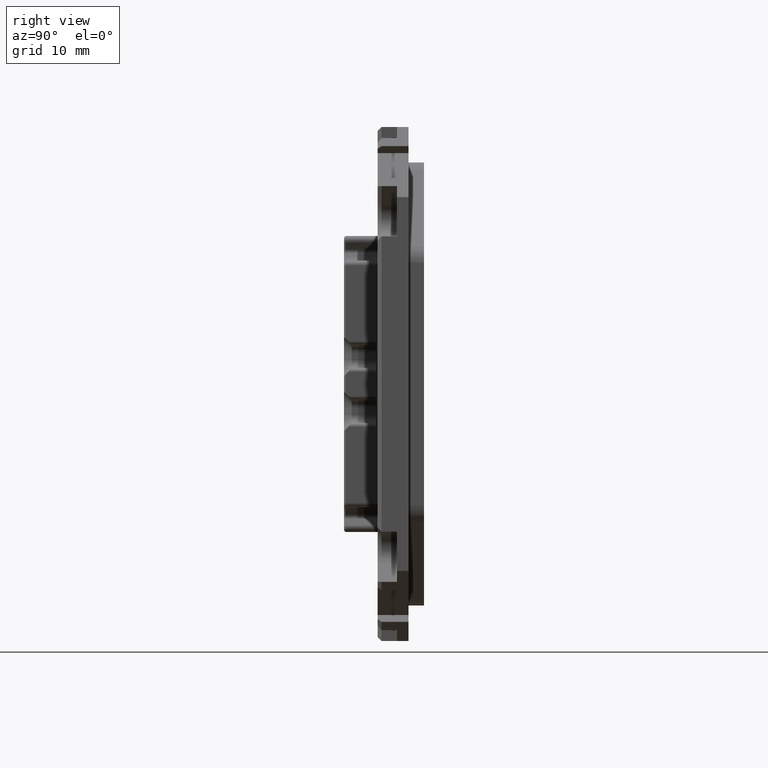
[diagram: clean part render]
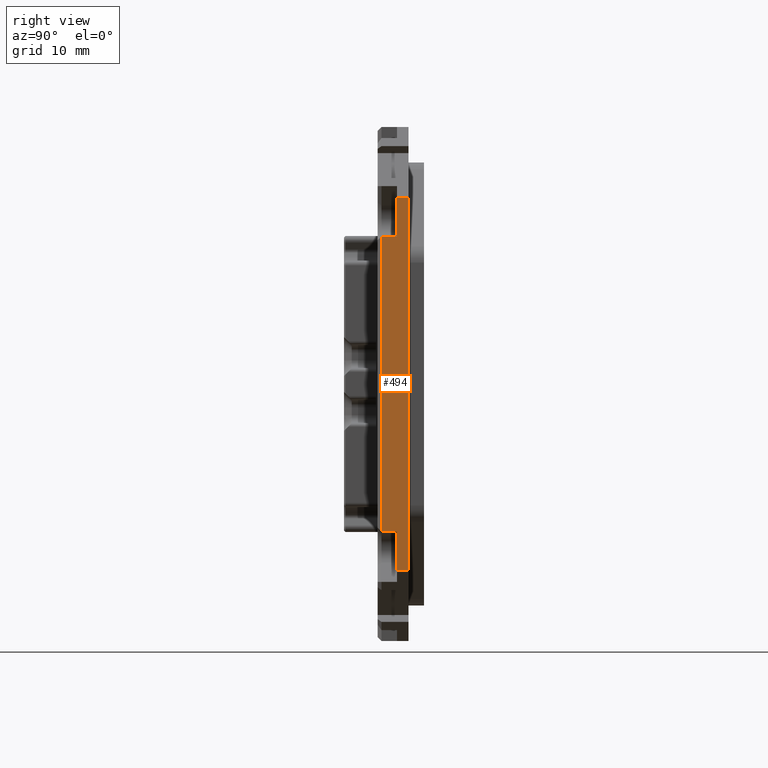
[diagram: same view with one face highlighted and labeled with its STEP entity id]
A machine part, right view. The second image highlights one B-rep face of the part: STEP entity #494.
In plain terms, the highlighted planar face has unit normal (1, 0, 0).
Its self-contained STEP definition (entity closure, byte-faithful):
#494=ADVANCED_FACE('',(#947),#4334,.T.);
#947=FACE_OUTER_BOUND('',#1415,.F.);
#1415=EDGE_LOOP('',(#2183,#2184,#2185,#2186,#2187,#2188,#2189,#2190));
#2183=ORIENTED_EDGE('',*,*,#6560,.T.);
#2184=ORIENTED_EDGE('',*,*,#6559,.T.);
#2185=ORIENTED_EDGE('',*,*,#6798,.F.);
#2186=ORIENTED_EDGE('',*,*,#6791,.F.);
#2187=ORIENTED_EDGE('',*,*,#6799,.T.);
#2188=ORIENTED_EDGE('',*,*,#6554,.T.);
#2189=ORIENTED_EDGE('',*,*,#6553,.T.);
#2190=ORIENTED_EDGE('',*,*,#6492,.T.);
#4334=PLANE('',#10503);
#6492=EDGE_CURVE('',#10112,#10072,#7700,.T.);
#6553=EDGE_CURVE('',#9999,#10112,#7753,.T.);
#6554=EDGE_CURVE('',#9998,#9999,#7754,.T.);
#6559=EDGE_CURVE('',#9994,#9993,#7757,.T.);
#6560=EDGE_CURVE('',#10072,#9994,#7758,.T.);
#6791=EDGE_CURVE('',#10036,#9761,#7879,.T.);
#6798=EDGE_CURVE('',#9761,#9993,#7886,.T.);
#6799=EDGE_CURVE('',#10036,#9998,#7887,.T.);
#7700=LINE('',#14252,#8548);
#7753=LINE('',#14313,#8601);
#7754=LINE('',#14314,#8602);
#7757=LINE('',#14319,#8605);
#7758=LINE('',#14320,#8606);
#7879=LINE('',#14551,#8727);
#7886=LINE('',#14558,#8734);
#7887=LINE('',#14559,#8735);
#8548=VECTOR('',#11040,38.1929938176767);
#8601=VECTOR('',#11109,2.);
#8602=VECTOR('',#11110,5.07371757831762);
#8605=VECTOR('',#11117,5.07803173955327);
#8606=VECTOR('',#11118,2.);
#8727=VECTOR('',#11459,48.3447431355476);
#8734=VECTOR('',#11466,1.50000000000001);
#8735=VECTOR('',#11467,1.5);
#9761=VERTEX_POINT('',#13821);
#9993=VERTEX_POINT('',#14053);
#9994=VERTEX_POINT('',#14054);
#9998=VERTEX_POINT('',#14058);
#9999=VERTEX_POINT('',#14059);
#10036=VERTEX_POINT('',#14096);
#10072=VERTEX_POINT('',#14132);
#10112=VERTEX_POINT('',#14172);
#10503=AXIS2_PLACEMENT_3D('',#15670,#12511,#12512);
#11040=DIRECTION('',(0.,0.,1.));
#11109=DIRECTION('',(0.,-1.,0.));
#11110=DIRECTION('',(0.,0.,1.));
#11117=DIRECTION('',(0.,0.,1.));
#11118=DIRECTION('',(0.,1.,0.));
#11459=DIRECTION('',(0.,0.,1.));
#11466=DIRECTION('',(0.,-1.,0.));
#11467=DIRECTION('',(0.,-1.,0.));
#12511=DIRECTION('',(1.,0.,0.));
#12512=DIRECTION('',(0.,0.,1.));
#13821=CARTESIAN_POINT('',(33.25,0.,24.1723715677738));
#14053=CARTESIAN_POINT('',(33.25,-1.5,24.1723715677738));
#14054=CARTESIAN_POINT('',(33.25,-1.49999999999999,19.0943398282205));
#14058=CARTESIAN_POINT('',(33.25,-1.50000000000001,-24.1723715677739));
#14059=CARTESIAN_POINT('',(33.25,-1.50000000000001,-19.0986539894562));
#14096=CARTESIAN_POINT('',(33.25,0.,-24.1723715677739));
#14132=CARTESIAN_POINT('',(33.25,-3.49999999999999,19.0943398282205));
#14172=CARTESIAN_POINT('',(33.25,-3.5,-19.0986539894562));
#14252=CARTESIAN_POINT('',(33.25,-3.5,-19.0986539894563));
#14313=CARTESIAN_POINT('',(33.25,-1.50000000000001,-19.0986539894562));
#14314=CARTESIAN_POINT('',(33.25,-1.50000000000001,-24.1723715677739));
#14319=CARTESIAN_POINT('',(33.25,-1.49999999999999,19.0943398282205));
#14320=CARTESIAN_POINT('',(33.25,-3.49999999999999,19.0943398282205));
#14551=CARTESIAN_POINT('',(33.25,0.,-24.1723715677739));
#14558=CARTESIAN_POINT('',(33.25,0.,24.1723715677738));
#14559=CARTESIAN_POINT('',(33.25,0.,-24.1723715677739));
#15670=CARTESIAN_POINT('',(33.25,0.48344743135547,-24.6558189991293));